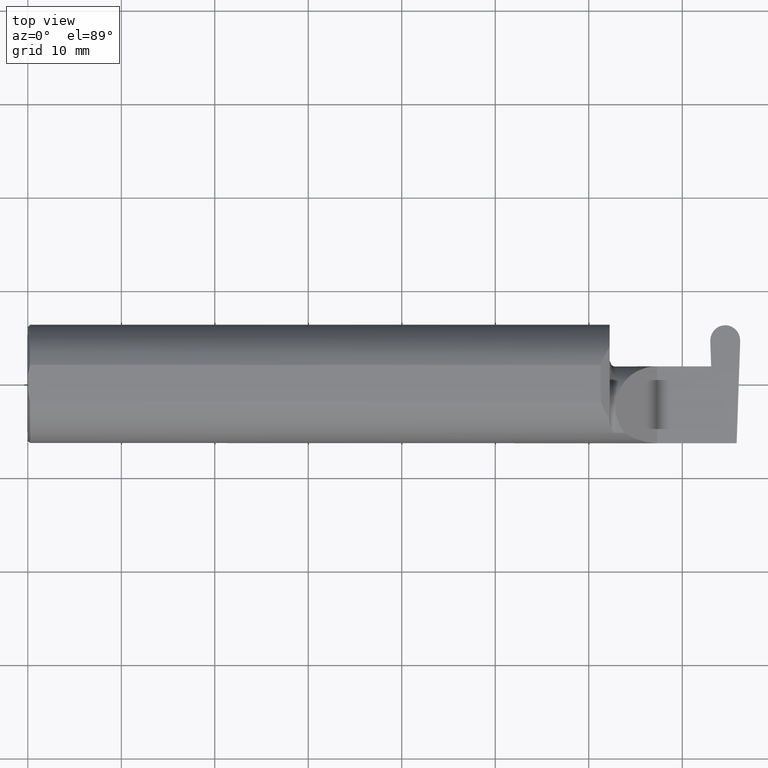
[diagram: clean part render]
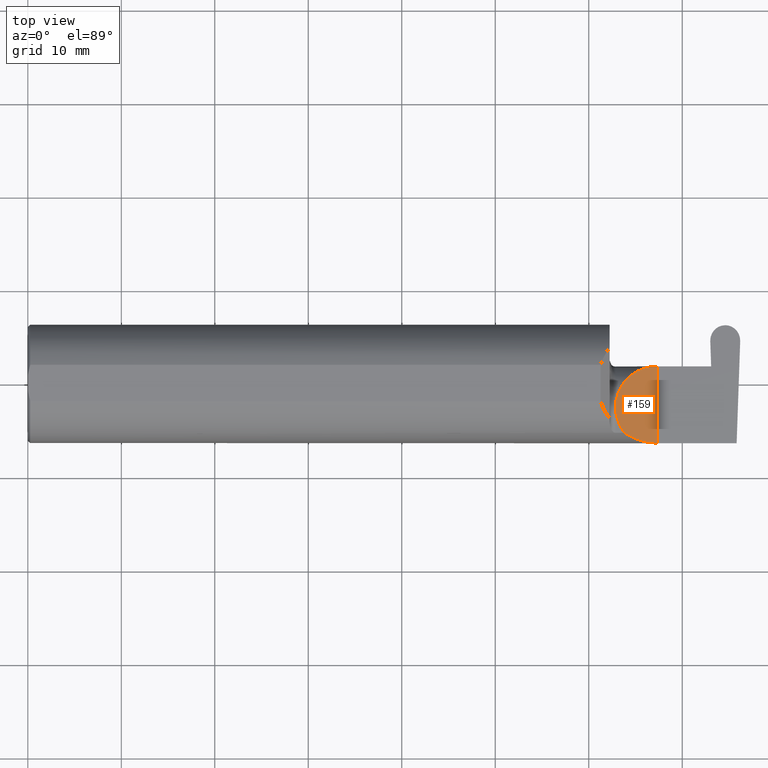
[diagram: same view with one face highlighted and labeled with its STEP entity id]
A machine part, top view. The second image highlights one B-rep face of the part: STEP entity #159.
In plain terms, the highlighted planar face has unit normal (-0.7071, 0, -0.7071).
Its self-contained STEP definition (entity closure, byte-faithful):
#2 = EDGE_CURVE ( 'NONE', #145, #468, #256, .T. ) ;
#22 = CARTESIAN_POINT ( 'NONE',  ( 2.511704467739031887, -0.2080850024789288322, 0.1382955322609670523 ) ) ;
#29 = PLANE ( 'NONE',  #499 ) ;
#47 = CARTESIAN_POINT ( 'NONE',  ( 2.650000000000000355, 0.07414999999999984104, 4.286263797015729199E-17 ) ) ;
#86 = FACE_OUTER_BOUND ( 'NONE', #465, .T. ) ;
#106 = ORIENTED_EDGE ( 'NONE', *, *, #2, .F. ) ;
#114 = DIRECTION ( 'NONE',  ( -0.000000000000000000, 1.000000000000000000, -0.000000000000000000 ) ) ;
#145 = VERTEX_POINT ( 'NONE', #557 ) ;
#159 = ADVANCED_FACE ( 'NONE', ( #86 ), #29, .F. ) ;
#162 = CARTESIAN_POINT ( 'NONE',  ( 2.650000000000000355, -0.2500000000000000555, 4.286263797015729199E-17 ) ) ;
#169 = CARTESIAN_POINT ( 'NONE',  ( 2.474999999999998757, -0.1400387324517231580, 0.1750000000000000444 ) ) ;
#191 = CARTESIAN_POINT ( 'NONE',  ( 2.600434159100402987, -0.2498499999999999610, 0.04956584089959713973 ) ) ;
#207 = CARTESIAN_POINT ( 'NONE',  ( 2.552984868485331571, -0.2355204011147991605, 0.09701513151466779894 ) ) ;
#213 = EDGE_CURVE ( 'NONE', #390, #145, #420, .T. ) ;
#221 = CARTESIAN_POINT ( 'NONE',  ( 2.547487373415291412, 0.07414999999999992430, 0.1025126265847084162 ) ) ;
#225 = CARTESIAN_POINT ( 'NONE',  ( 2.475000000000000089, -0.1008500000000001895, 0.1749999999999984346 ) ) ;
#256 =( BOUNDED_CURVE ( )  B_SPLINE_CURVE ( 3, ( #290, #415, #169, #661 ),
 .UNSPECIFIED., .F., .T. ) 
 B_SPLINE_CURVE_WITH_KNOTS ( ( 4, 4 ),
 ( 5.623622464215682903, 6.283185307179586232 ),
 .UNSPECIFIED. ) 
 CURVE ( )  GEOMETRIC_REPRESENTATION_ITEM ( )  RATIONAL_B_SPLINE_CURVE ( ( 1.000000000000000000, 0.9640754331822833922, 0.9640754331822833922, 1.000000000000000000 ) ) 
 REPRESENTATION_ITEM ( '' )  );
#267 = ORIENTED_EDGE ( 'NONE', *, *, #379, .F. ) ;
#290 = CARTESIAN_POINT ( 'NONE',  ( 2.511704467739031887, -0.2080850024789288322, 0.1382955322609670523 ) ) ;
#322 = DIRECTION ( 'NONE',  ( -0.7071067811865511255, 0.000000000000000000, 0.7071067811865439090 ) ) ;
#344 =( BOUNDED_CURVE ( )  B_SPLINE_CURVE ( 3, ( #225, #646, #221, #47 ),
 .UNSPECIFIED., .F., .T. ) 
 B_SPLINE_CURVE_WITH_KNOTS ( ( 4, 4 ),
 ( 0.000000000000000000, 1.570796326794896780 ),
 .UNSPECIFIED. ) 
 CURVE ( )  GEOMETRIC_REPRESENTATION_ITEM ( )  RATIONAL_B_SPLINE_CURVE ( ( 1.000000000000000000, 0.8047378541243649375, 0.8047378541243649375, 1.000000000000000000 ) ) 
 REPRESENTATION_ITEM ( '' )  );
#345 = CARTESIAN_POINT ( 'NONE',  ( 2.650000000000000355, -0.2498499999999999610, 4.286263797015729199E-17 ) ) ;
#379 = EDGE_CURVE ( 'NONE', #468, #702, #344, .T. ) ;
#389 = DIRECTION ( 'NONE',  ( -0.7071067811865439090, 0.000000000000000000, -0.7071067811865511255 ) ) ;
#390 = VERTEX_POINT ( 'NONE', #345 ) ;
#415 = CARTESIAN_POINT ( 'NONE',  ( 2.487690731615565642, -0.1771157075472508391, 0.1623092683844332140 ) ) ;
#417 = EDGE_CURVE ( 'NONE', #390, #702, #719, .T. ) ;
#420 =( BOUNDED_CURVE ( )  B_SPLINE_CURVE ( 3, ( #623, #191, #207, #22 ),
 .UNSPECIFIED., .F., .F. ) 
 B_SPLINE_CURVE_WITH_KNOTS ( ( 4, 4 ),
 ( 4.712388980384689674, 5.298966915116348986 ),
 .UNSPECIFIED. ) 
 CURVE ( )  GEOMETRIC_REPRESENTATION_ITEM ( )  RATIONAL_B_SPLINE_CURVE ( ( 1.000000000000000000, 0.9715321379117536349, 0.9715321379117536349, 1.000000000000000000 ) ) 
 REPRESENTATION_ITEM ( '' )  );
#425 = VECTOR ( 'NONE', #114, 39.37007874015748143 ) ;
#454 = ORIENTED_EDGE ( 'NONE', *, *, #417, .T. ) ;
#465 = EDGE_LOOP ( 'NONE', ( #267, #106, #482, #454 ) ) ;
#468 = VERTEX_POINT ( 'NONE', #724 ) ;
#482 = ORIENTED_EDGE ( 'NONE', *, *, #213, .F. ) ;
#499 = AXIS2_PLACEMENT_3D ( 'NONE', #633, #389, #322 ) ;
#557 = CARTESIAN_POINT ( 'NONE',  ( 2.511704467739031887, -0.2080850024789288322, 0.1382955322609670523 ) ) ;
#623 = CARTESIAN_POINT ( 'NONE',  ( 2.650000000000000355, -0.2498499999999999610, 4.286263797015729199E-17 ) ) ;
#633 = CARTESIAN_POINT ( 'NONE',  ( 2.650000000000000355, -0.2500000000000000555, 4.286263797015729199E-17 ) ) ;
#646 = CARTESIAN_POINT ( 'NONE',  ( 2.474999999999998757, 0.001662626584708217772, 0.1750000000000000999 ) ) ;
#648 = CARTESIAN_POINT ( 'NONE',  ( 2.650000000000000355, 0.07414999999999984104, 4.286263797015729199E-17 ) ) ;
#661 = CARTESIAN_POINT ( 'NONE',  ( 2.475000000000000089, -0.1008500000000001895, 0.1749999999999984346 ) ) ;
#702 = VERTEX_POINT ( 'NONE', #648 ) ;
#719 = LINE ( 'NONE', #162, #425 ) ;
#724 = CARTESIAN_POINT ( 'NONE',  ( 2.475000000000000089, -0.1008500000000001895, 0.1749999999999984346 ) ) ;